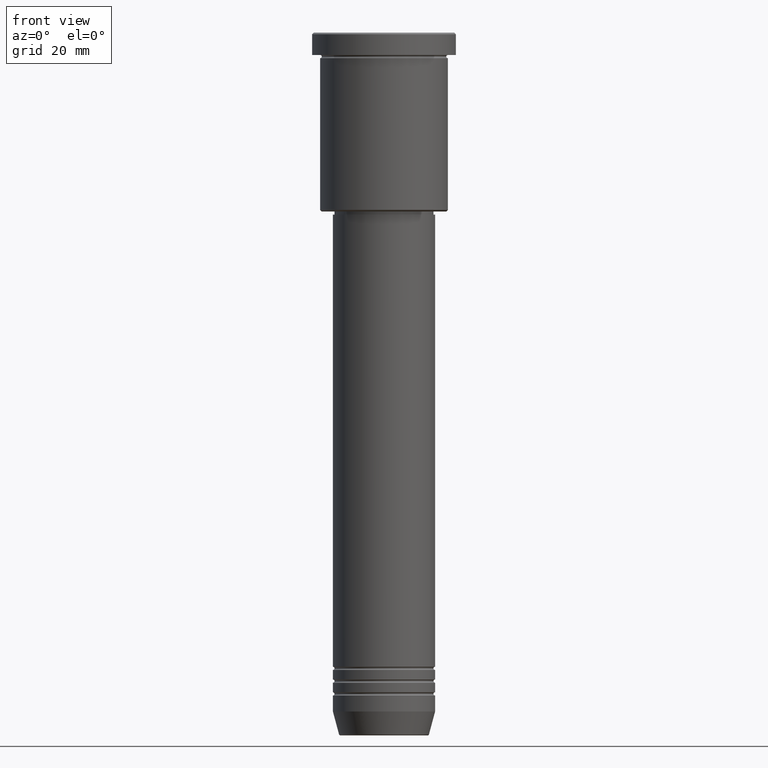
[diagram: clean part render]
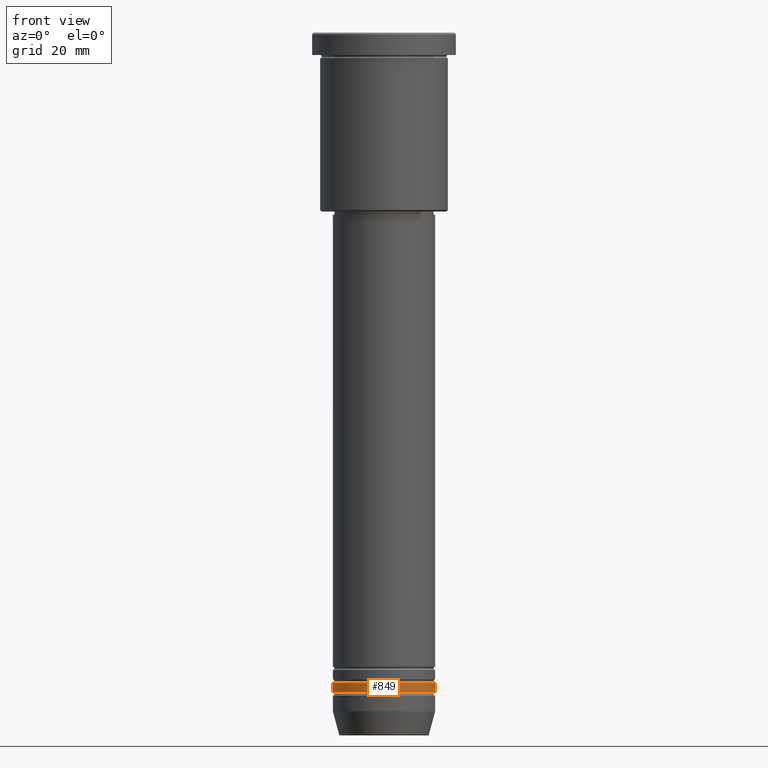
[diagram: same view with one face highlighted and labeled with its STEP entity id]
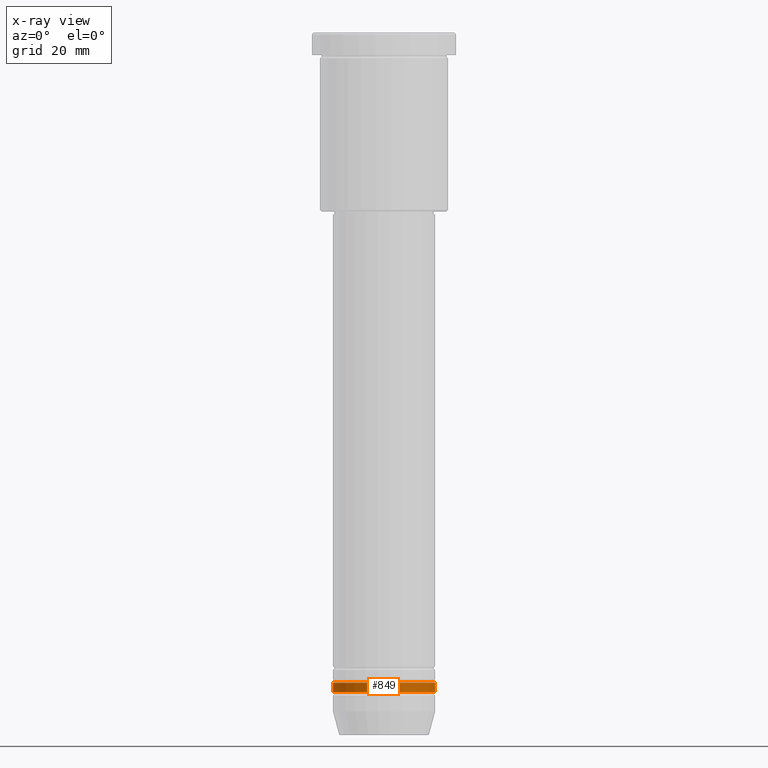
[diagram: x-ray of the same camera — body ghosted, the highlighted face saturated]
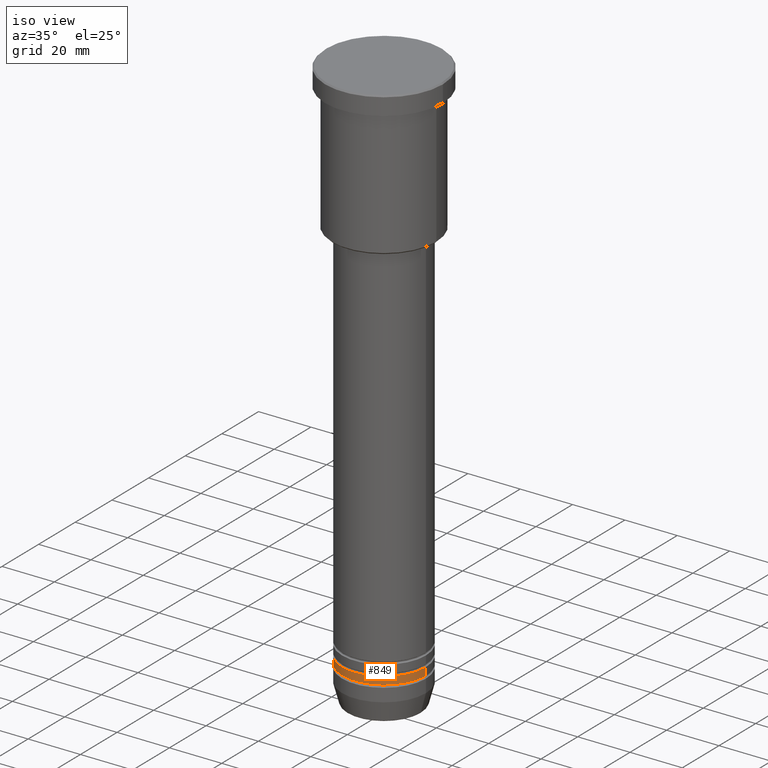
[diagram: same view with one face highlighted and labeled with its STEP entity id]
A machine part, front view. The second image highlights one B-rep face of the part: STEP entity #849.
The next image is the same camera in x-ray: the body ghosted, the highlighted face saturated — about 0% of this face is hidden behind the body in this view.
A second angle (iso view) of the same face is appended — the face is thin or edge-on in the first view.
In plain terms, the highlighted cylindrical surface (partial cylindrical patch) has radius 16 mm, axis along (-0, -0, 1).
Its self-contained STEP definition (entity closure, byte-faithful):
#27 = EDGE_CURVE ( 'NONE', #594, #246, #324, .T. ) ;
#44 = EDGE_CURVE ( 'NONE', #304, #594, #353, .T. ) ;
#99 = CARTESIAN_POINT ( 'NONE',  ( -16.00000000000000000, 1.959434878635765131E-15, -206.4999999999999716 ) ) ;
#104 = AXIS2_PLACEMENT_3D ( 'NONE', #847, #468, #935 ) ;
#140 = DIRECTION ( 'NONE',  ( -0.000000000000000000, -0.000000000000000000, 1.000000000000000000 ) ) ;
#156 = CARTESIAN_POINT ( 'NONE',  ( 0.000000000000000000, 0.000000000000000000, 0.000000000000000000 ) ) ;
#171 = CARTESIAN_POINT ( 'NONE',  ( 16.00000000000000000, 0.000000000000000000, -206.4999999999999716 ) ) ;
#184 = ORIENTED_EDGE ( 'NONE', *, *, #27, .T. ) ;
#217 = ORIENTED_EDGE ( 'NONE', *, *, #383, .F. ) ;
#225 = CARTESIAN_POINT ( 'NONE',  ( -16.00000000000000000, 1.959434878635765131E-15, 0.000000000000000000 ) ) ;
#246 = VERTEX_POINT ( 'NONE', #890 ) ;
#247 = DIRECTION ( 'NONE',  ( -0.000000000000000000, -0.000000000000000000, 1.000000000000000000 ) ) ;
#304 = VERTEX_POINT ( 'NONE', #99 ) ;
#324 = LINE ( 'NONE', #700, #1153 ) ;
#353 = CIRCLE ( 'NONE', #764, 16.00000000000000000 ) ;
#383 = EDGE_CURVE ( 'NONE', #638, #246, #1117, .T. ) ;
#466 = ORIENTED_EDGE ( 'NONE', *, *, #44, .T. ) ;
#468 = DIRECTION ( 'NONE',  ( -0.000000000000000000, -0.000000000000000000, 1.000000000000000000 ) ) ;
#512 = DIRECTION ( 'NONE',  ( -0.000000000000000000, -0.000000000000000000, 1.000000000000000000 ) ) ;
#544 = EDGE_LOOP ( 'NONE', ( #716, #466, #184, #217 ) ) ;
#555 = VECTOR ( 'NONE', #247, 1000.000000000000000 ) ;
#594 = VERTEX_POINT ( 'NONE', #171 ) ;
#597 = CYLINDRICAL_SURFACE ( 'NONE', #952, 16.00000000000000000 ) ;
#638 = VERTEX_POINT ( 'NONE', #732 ) ;
#700 = CARTESIAN_POINT ( 'NONE',  ( 16.00000000000000000, 0.000000000000000000, 0.000000000000000000 ) ) ;
#716 = ORIENTED_EDGE ( 'NONE', *, *, #950, .F. ) ;
#732 = CARTESIAN_POINT ( 'NONE',  ( -16.00000000000000000, 1.959434878635765131E-15, -203.5000000000000000 ) ) ;
#764 = AXIS2_PLACEMENT_3D ( 'NONE', #863, #512, #885 ) ;
#781 = DIRECTION ( 'NONE',  ( 1.000000000000000000, 0.000000000000000000, 0.000000000000000000 ) ) ;
#847 = CARTESIAN_POINT ( 'NONE',  ( 0.000000000000000000, 0.000000000000000000, -203.5000000000000000 ) ) ;
#849 = ADVANCED_FACE ( 'NONE', ( #968 ), #597, .T. ) ;
#863 = CARTESIAN_POINT ( 'NONE',  ( 0.000000000000000000, 0.000000000000000000, -206.4999999999999716 ) ) ;
#885 = DIRECTION ( 'NONE',  ( 1.000000000000000000, 0.000000000000000000, 0.000000000000000000 ) ) ;
#890 = CARTESIAN_POINT ( 'NONE',  ( 16.00000000000000000, 0.000000000000000000, -203.5000000000000000 ) ) ;
#935 = DIRECTION ( 'NONE',  ( 1.000000000000000000, 0.000000000000000000, 0.000000000000000000 ) ) ;
#950 = EDGE_CURVE ( 'NONE', #304, #638, #1074, .T. ) ;
#952 = AXIS2_PLACEMENT_3D ( 'NONE', #156, #140, #781 ) ;
#968 = FACE_OUTER_BOUND ( 'NONE', #544, .T. ) ;
#1057 = DIRECTION ( 'NONE',  ( -0.000000000000000000, -0.000000000000000000, 1.000000000000000000 ) ) ;
#1074 = LINE ( 'NONE', #225, #555 ) ;
#1117 = CIRCLE ( 'NONE', #104, 16.00000000000000000 ) ;
#1153 = VECTOR ( 'NONE', #1057, 1000.000000000000000 ) ;